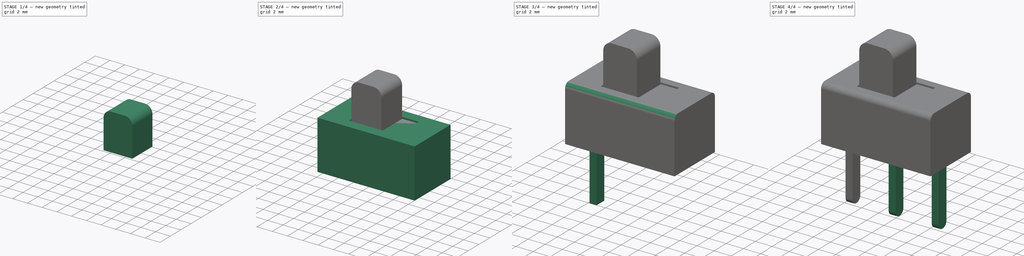
[diagram: build sequence overview — one tinted view per stage of 4, left to right]
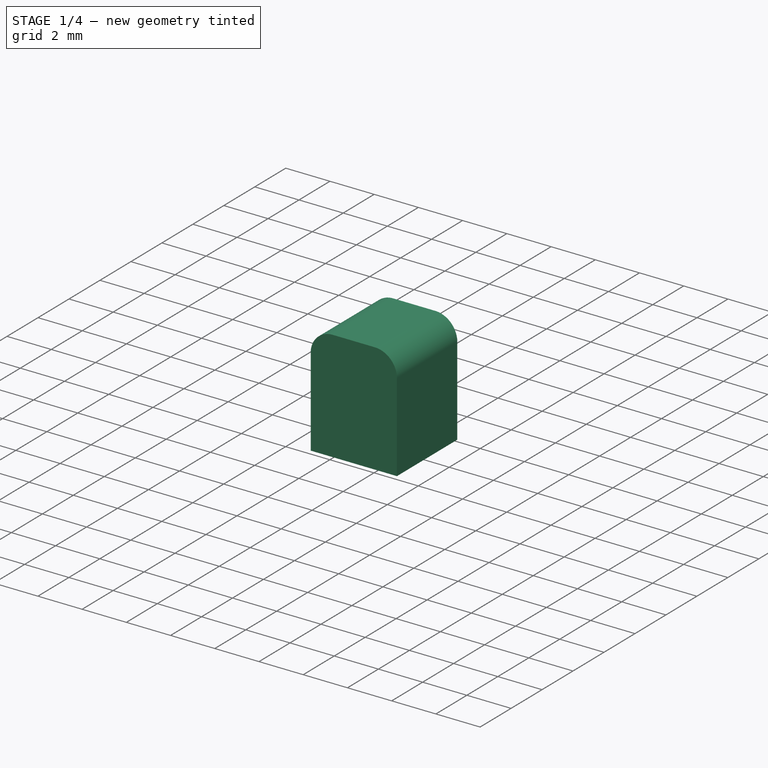
[diagram: stage 1 of 4 — iso view after this stage's code; geometry added in this stage tinted green]
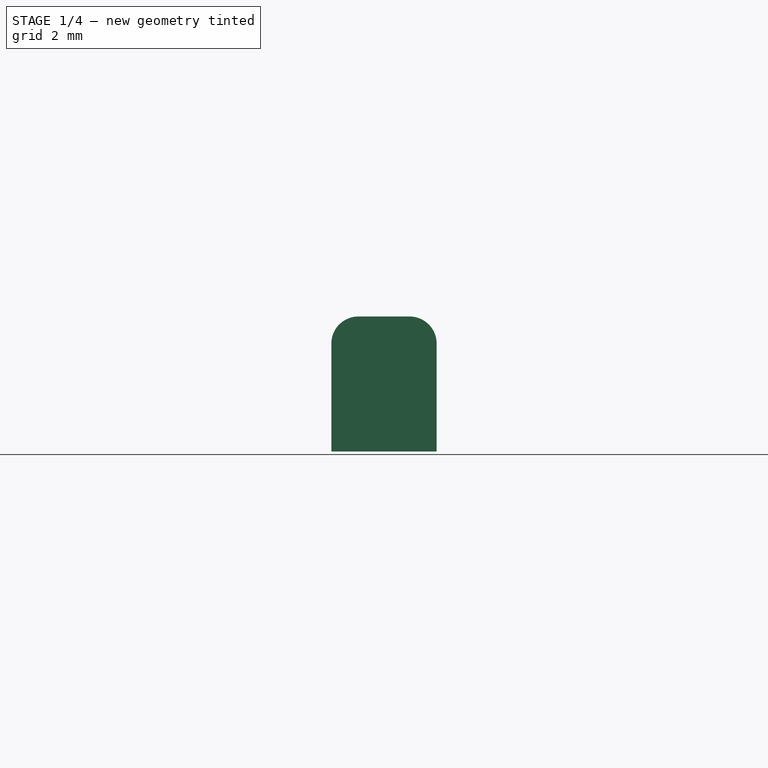
[diagram: stage 1 of 4 — front view after this stage's code; geometry added in this stage tinted green]
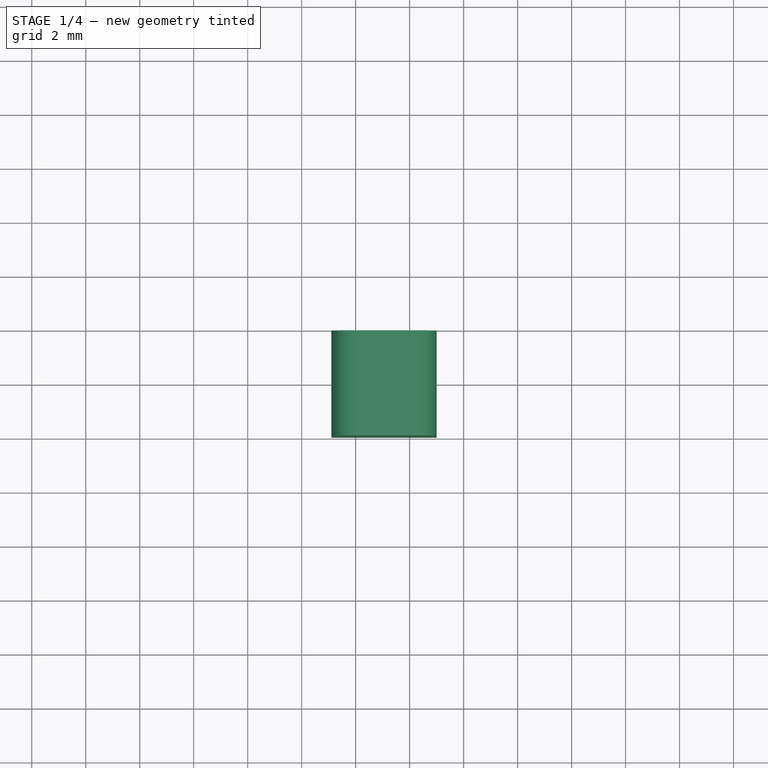
[diagram: stage 1 of 4 — top view after this stage's code; geometry added in this stage tinted green]
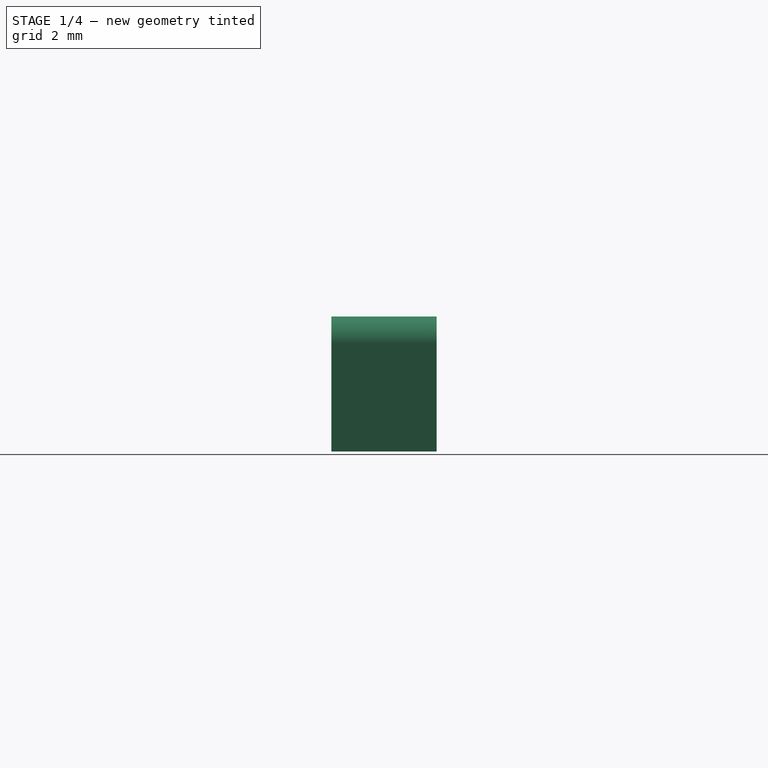
[diagram: stage 1 of 4 — right view after this stage's code; geometry added in this stage tinted green]
FCSTD DOCUMENT  (FreeCAD 2021.1015R24301 +4280 (Git))
Label: SK-12D10
License: Creative Commons Attribution-NoDerivatives
LicenseURL: http://creativecommons.org/licenses/by-nd/4.0/
objects: Sketcher::SketchObject×4, PartDesign::Pad×4, PartDesign::Fillet×4, PartDesign::Body×3, PartDesign::LinearPattern×1, Part::SubShapeBinder×1, App::Part×1
note: 35 computed .brp shape members not serialized (recipe doc carries the construction recipe); baked Part::Feature solids carry a one-line shape summary decoded from their .brp

FEATURE [PartDesign::Body] Body
  AutoGroupSolids = false
  ExportMode = 0
  Group = -> [Sketch,Pad,Sketch002,Pad002,Fillet001,Fillet002]
  Origin = -> Origin001
  SingleSolid = true
  Tip = -> Fillet002
  _ExportChildren = -> [Pad,Pad002,Fillet001,Fillet002]
  _GroupVersion = 1
FEATURE [Part::SubShapeBinder] Import  label="Import(Fillet002)"
  BindCopyOnChange = 0
  BindMode = 0
  ClaimChildren = false
  Context = -> Part [Body002.Import.]
  FillStyle = 0
  Fuse = false
  MakeFace = false
  PartialLoad = false
  Relative = true
  Support = -> [Body[Fillet002.]]
  _Version = 8
FEATURE [Sketcher::SketchObject] Sketch003
  FullyConstrained = true
  MapMode = 5
  Placement = pos=(0,0,6.2) rot=(0,0,1;0rad)
  Support = -> [Import]
  sketch-geometry (4):
    g0: LineSegment StartX=-2.9 StartY=1.95 StartZ=0 EndX=1 EndY=1.95 EndZ=0
    g1: LineSegment StartX=1 StartY=1.95 StartZ=0 EndX=1 EndY=-1.95 EndZ=0
    g2: LineSegment StartX=1 StartY=-1.95 StartZ=0 EndX=-2.9 EndY=-1.95 EndZ=0
    g3: LineSegment StartX=-2.9 StartY=-1.95 StartZ=0 EndX=-2.9 EndY=1.95 EndZ=0
  constraints (11):
    c: Coincident(g0,g1)
    c: Coincident(g1,g2)
    c: Coincident(g2,g3)
    c: Coincident(g3,g0)
    c: Horizontal(g0)
    c: Horizontal(g2)
    c: Vertical(g3)
    c: Symmetric(g1,g0,g-1)
    c: DistanceX(g0,g0) = 3.9
    c: DistanceY(g3,g3) = 3.9
    c: DistanceX(g-1,g0) = 1
FEATURE [PartDesign::Pad] Pad003
  AddSubType = 0
  CheckUpToFaceLimits = true
  ClaimChildren = false
  Direction = (1,1,1)
  Fit = 0
  FitJoin = 0
  InnerFit = 0
  InnerFitJoin = 0
  InnerTaperAngle = 0
  InnerTaperAngleRev = 0
  Length = 5
  Length2 = 100
  Linearize = true
  NewSolid = false
  Profile = -> Sketch003
  Refine = true
  Suppress = false
  Type = 0
  _ProfileBasedVersion = 1
FEATURE [PartDesign::Fillet] Fillet003
  AddSubType = 0
  Base = -> Pad003 [Edge12,Edge7]
  BaseFeature = -> Pad003
  NewSolid = false
  Radius = 1
  Refine = true
  SupportTransform = false
  Suppress = false
FEATURE [PartDesign::Body] Body002  label="Lever"
  AutoGroupSolids = false
  ExportMode = 0
  Group = -> [Import,Sketch003,Pad003,Fillet003]
  Origin = -> Origin003
  SingleSolid = true
  Tip = -> Fillet003
  _ExportChildren = -> [Import,Pad003,Fillet003]
  _GroupVersion = 1
FEATURE [App::Part] Part  label="SK-12D10 1P2T"
  ExportMode = 1
  Group = -> [Body,Body001,Body002]
  Origin = -> Origin
  _ExportChildren = -> [Body,Body001,Body002]
  _GroupVersion = 1
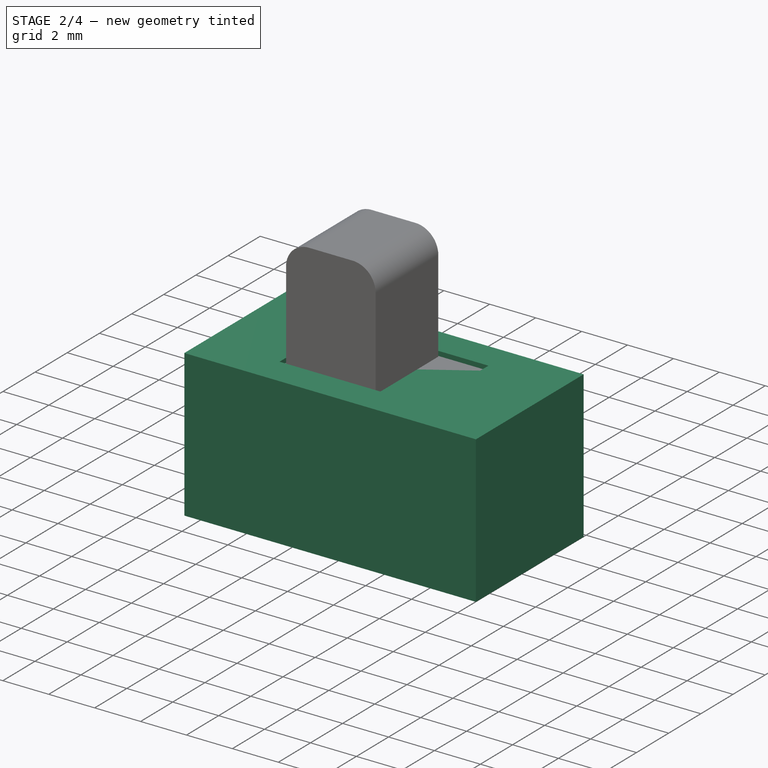
[diagram: stage 2 of 4 — iso view after this stage's code; geometry added in this stage tinted green]
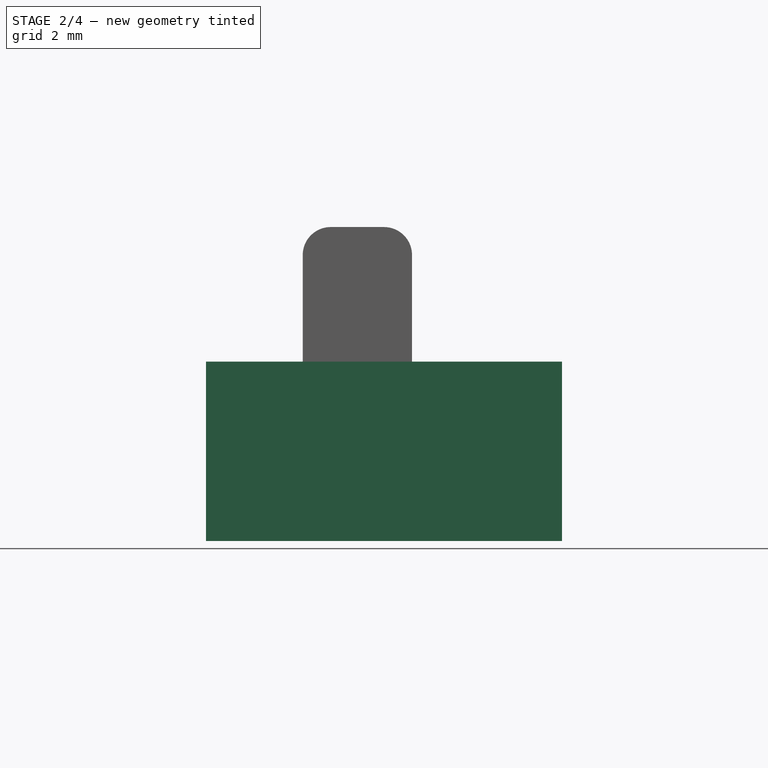
[diagram: stage 2 of 4 — front view after this stage's code; geometry added in this stage tinted green]
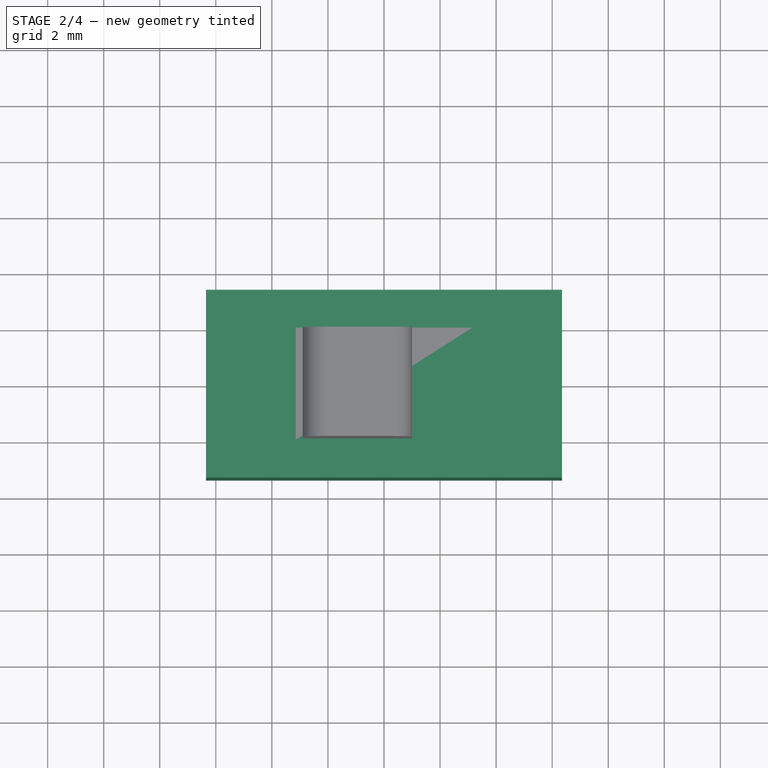
[diagram: stage 2 of 4 — top view after this stage's code; geometry added in this stage tinted green]
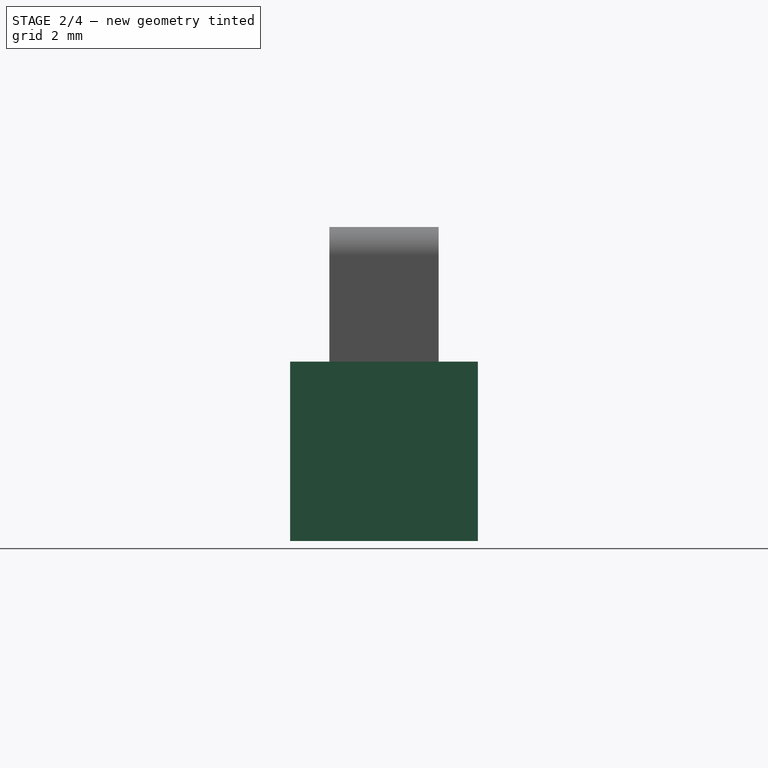
[diagram: stage 2 of 4 — right view after this stage's code; geometry added in this stage tinted green]
FEATURE [Sketcher::SketchObject] Sketch
  FullyConstrained = true
  MapMode = 5
  Support = -> [XY_Plane]
  sketch-geometry (4):
    g0: LineSegment StartX=-6.35 StartY=3.35 StartZ=0 EndX=6.35 EndY=3.35 EndZ=0
    g1: LineSegment StartX=6.35 StartY=3.35 StartZ=0 EndX=6.35 EndY=-3.35 EndZ=0
    g2: LineSegment StartX=6.35 StartY=-3.35 StartZ=0 EndX=-6.35 EndY=-3.35 EndZ=0
    g3: LineSegment StartX=-6.35 StartY=-3.35 StartZ=0 EndX=-6.35 EndY=3.35 EndZ=0
  constraints (11):
    c: Coincident(g0,g1)
    c: Coincident(g1,g2)
    c: Coincident(g2,g3)
    c: Coincident(g3,g0)
    c: Horizontal(g0)
    c: Horizontal(g2)
    c: Vertical(g1)
    c: Vertical(g3)
    c: Symmetric(g1,g0,g-1)
    c: DistanceX(g0,g0) = 12.7
    c: DistanceY(g1,g1) = 6.7
FEATURE [PartDesign::Pad] Pad
  AddSubType = 0
  CheckUpToFaceLimits = true
  ClaimChildren = false
  Direction = (1,1,1)
  Fit = 0
  FitJoin = 0
  InnerFit = 0
  InnerFitJoin = 0
  InnerTaperAngle = 0
  InnerTaperAngleRev = 0
  Length = 6.4
  Length2 = 100
  Linearize = true
  NewSolid = false
  Profile = -> Sketch
  Refine = true
  Suppress = false
  Type = 0
  _ProfileBasedVersion = 1
FEATURE [PartDesign::Body] Body001  label="Pin"
  AutoGroupSolids = false
  ExportMode = 0
  Group = -> [Sketch001,Pad001,LinearPattern,Fillet]
  Origin = -> Origin002
  Tip = -> Fillet
  _ExportChildren = -> [Pad001,LinearPattern,Fillet]
  _GroupVersion = 1
FEATURE [Sketcher::SketchObject] Sketch002
  FullyConstrained = true
  MapMode = 5
  Placement = pos=(0,0,6.4) rot=(0,0,1;0rad)
  Support = -> [Pad]
  sketch-geometry (4):
    g0: LineSegment StartX=-3.15 StartY=2 StartZ=0 EndX=3.15 EndY=2 EndZ=0
    g1: LineSegment StartX=3.15 StartY=2 StartZ=0 EndX=3.15 EndY=-2 EndZ=0
    g2: LineSegment StartX=3.15 StartY=-2 StartZ=0 EndX=-3.15 EndY=-2 EndZ=0
    g3: LineSegment StartX=-3.15 StartY=-2 StartZ=0 EndX=-3.15 EndY=2 EndZ=0
  constraints (11):
    c: Coincident(g0,g1)
    c: Coincident(g1,g2)
    c: Coincident(g2,g3)
    c: Coincident(g3,g0)
    c: Horizontal(g0)
    c: Horizontal(g2)
    c: Vertical(g1)
    c: Vertical(g3)
    c: Symmetric(g1,g0,g-1)
    c: DistanceY(g1,g1) = 4
    c: DistanceX(g0,g0) = 6.3
FEATURE [PartDesign::Pad] Pad002
  AddSubType = 1
  BaseFeature = -> Pad
  CheckUpToFaceLimits = true
  ClaimChildren = false
  Direction = (1,1,1)
  Fit = 0
  FitJoin = 0
  InnerFit = 0
  InnerFitJoin = 0
  InnerTaperAngle = 0
  InnerTaperAngleRev = 0
  Length = 0.2
  Length2 = 100
  Linearize = true
  NewSolid = false
  Profile = -> Sketch002
  Refine = true
  Reversed = true
  Suppress = false
  Type = 0
  _ProfileBasedVersion = 1
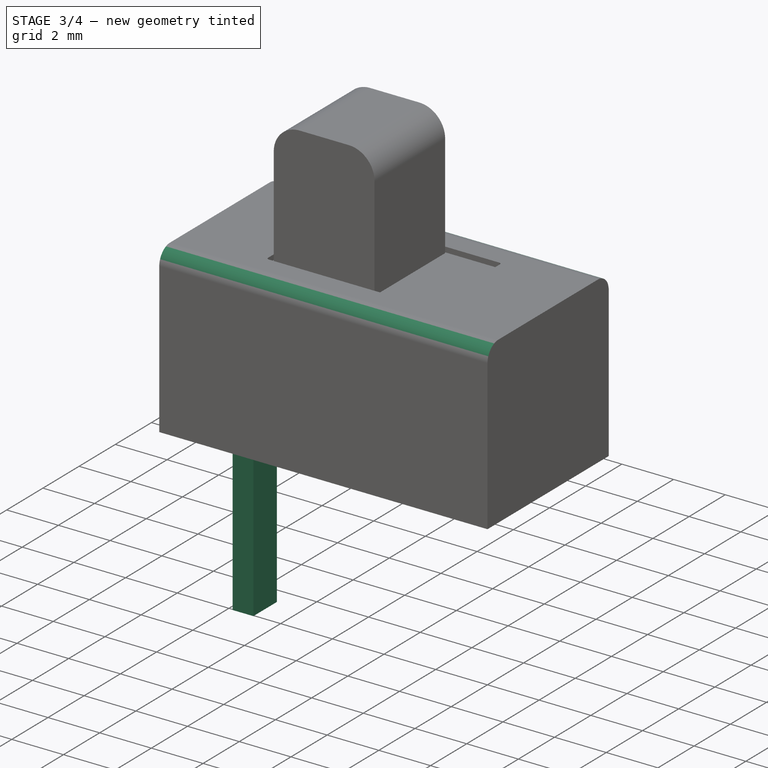
[diagram: stage 3 of 4 — iso view after this stage's code; geometry added in this stage tinted green]
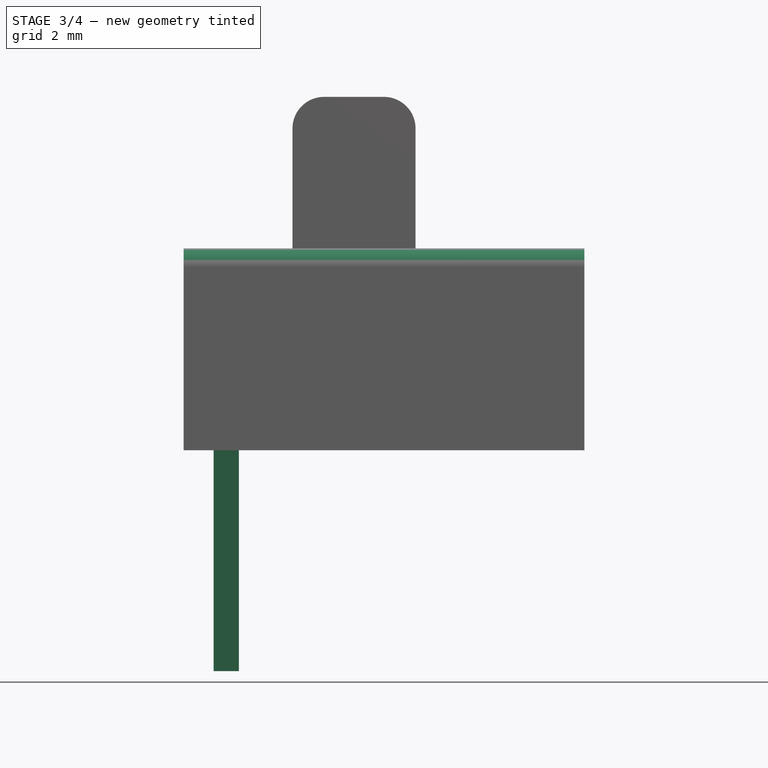
[diagram: stage 3 of 4 — front view after this stage's code; geometry added in this stage tinted green]
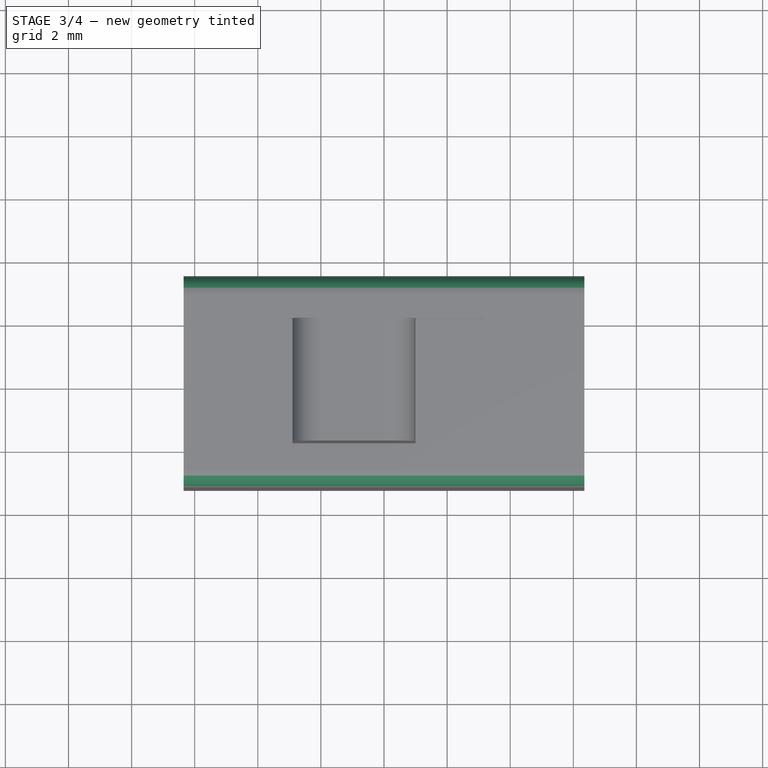
[diagram: stage 3 of 4 — top view after this stage's code; geometry added in this stage tinted green]
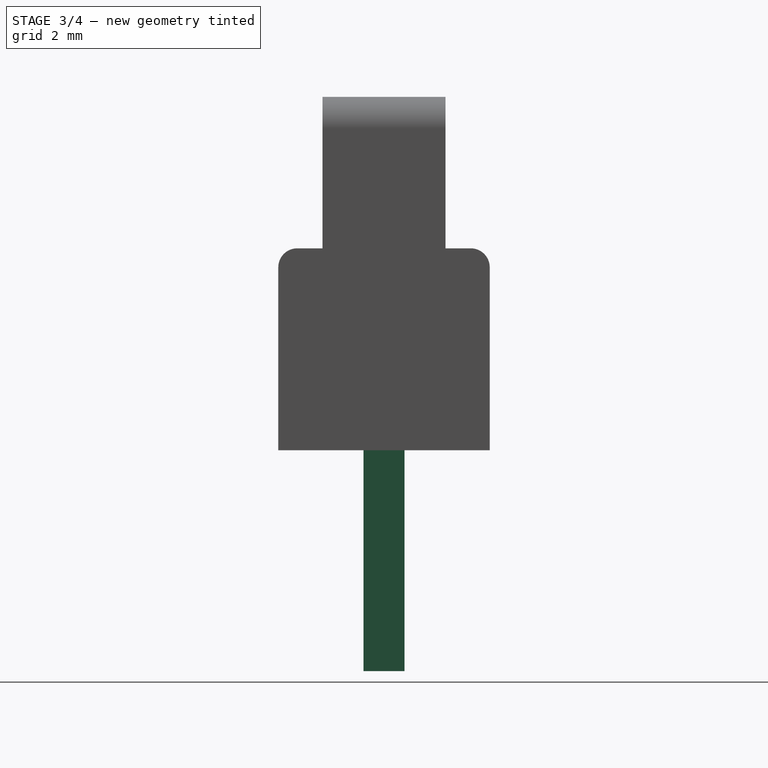
[diagram: stage 3 of 4 — right view after this stage's code; geometry added in this stage tinted green]
FEATURE [Sketcher::SketchObject] Sketch001
  FullyConstrained = true
  MapMode = 5
  Support = -> [XY_Plane001]
  sketch-geometry (5):
    g0: LineSegment StartX=-5.4 StartY=0.65 StartZ=0 EndX=-4.6 EndY=0.65 EndZ=0
    g1: LineSegment StartX=-4.6 StartY=0.65 StartZ=0 EndX=-4.6 EndY=-0.65 EndZ=0
    g2: LineSegment StartX=-4.6 StartY=-0.65 StartZ=0 EndX=-5.4 EndY=-0.65 EndZ=0
    g3: LineSegment StartX=-5.4 StartY=-0.65 StartZ=0 EndX=-5.4 EndY=0.65 EndZ=0
    g4: LineSegment [constr] StartX=-5 StartY=0.65 StartZ=0 EndX=-5 EndY=-0.65 EndZ=0
  constraints (14):
    c: Coincident(g0,g1)
    c: Coincident(g1,g2)
    c: Coincident(g2,g3)
    c: Coincident(g3,g0)
    c: Horizontal(g0)
    c: Horizontal(g2)
    c: Vertical(g3)
    c: Symmetric(g1,g0,g-1)
    c: PointOnObject(g4,g2)
    c: Vertical(g4)
    c: Symmetric(g0,g0,g4)
    c: DistanceX(g4,g-1) = 5
    c: DistanceY(g3,g3) = 1.3
    c: DistanceX(g0,g0) = 0.8
FEATURE [PartDesign::Pad] Pad001
  AddSubType = 0
  CheckUpToFaceLimits = true
  ClaimChildren = false
  Direction = (1,1,1)
  Fit = 0
  FitJoin = 0
  InnerFit = 0
  InnerFitJoin = 0
  InnerTaperAngle = 0
  InnerTaperAngleRev = 0
  Length = 7
  Length2 = 100
  Linearize = true
  NewSolid = false
  Profile = -> Sketch001
  Refine = true
  Reversed = true
  Suppress = false
  Type = 0
  _ProfileBasedVersion = 1
FEATURE [PartDesign::Fillet] Fillet001
  AddSubType = 0
  Base = -> Pad002 [Edge4,Edge12]
  BaseFeature = -> Pad002
  NewSolid = false
  Radius = 0.6
  Refine = true
  SupportTransform = false
  Suppress = false
FEATURE [PartDesign::Fillet] Fillet002
  AddSubType = 0
  Base = -> Fillet001 [Edge24,Edge23,Edge28,Edge26]
  BaseFeature = -> Fillet001
  NewSolid = false
  Radius = 0.1
  Refine = true
  SupportTransform = false
  Suppress = false
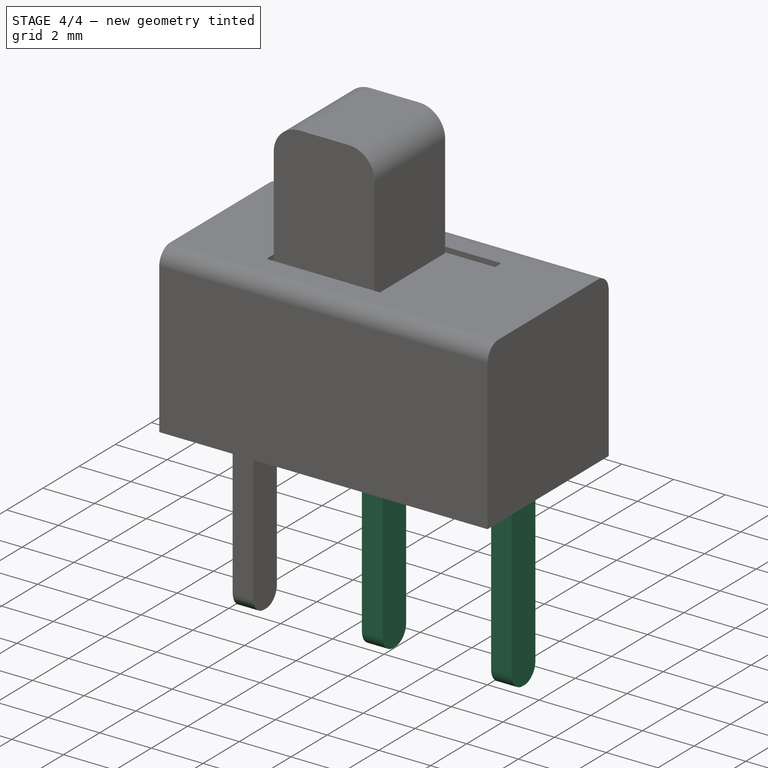
[diagram: stage 4 of 4 — iso view after this stage's code; geometry added in this stage tinted green]
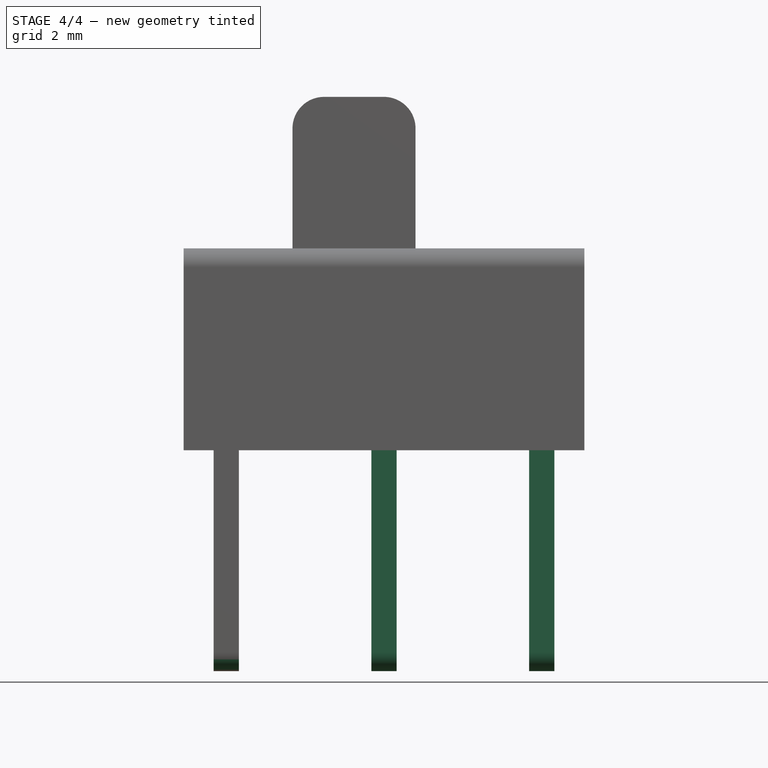
[diagram: stage 4 of 4 — front view after this stage's code; geometry added in this stage tinted green]
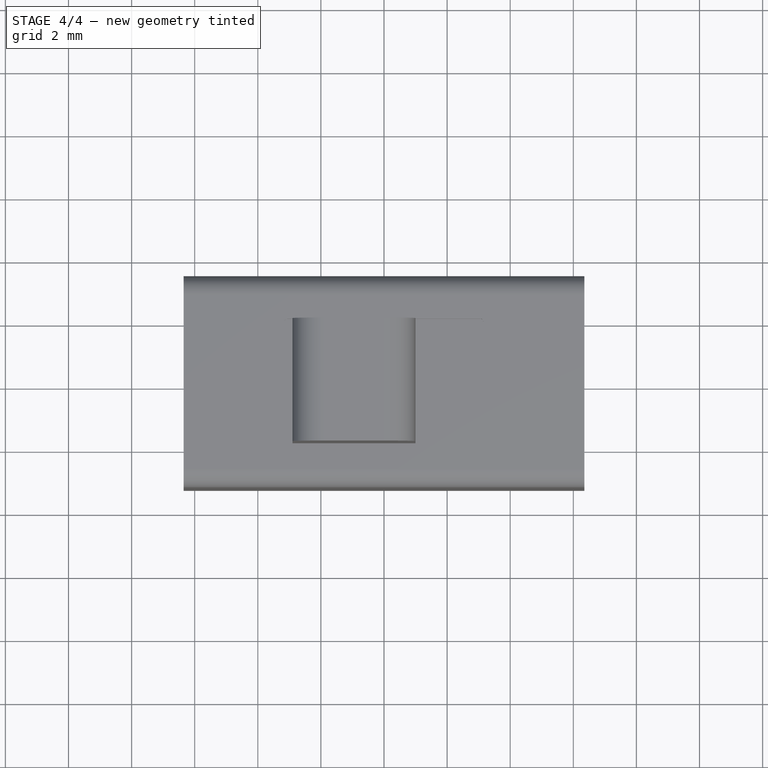
[diagram: stage 4 of 4 — top view after this stage's code; geometry added in this stage tinted green]
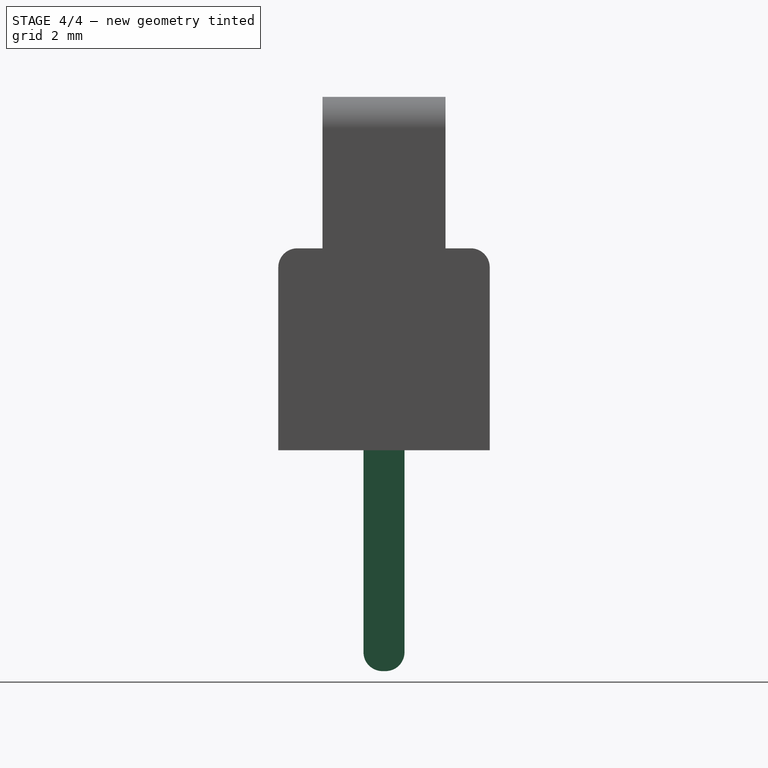
[diagram: stage 4 of 4 — right view after this stage's code; geometry added in this stage tinted green]
FEATURE [PartDesign::LinearPattern] LinearPattern
  AddSubType = 0
  BaseFeature = -> Pad001
  CopyShape = false
  Direction = -> Sketch001 [H_Axis]
  Length = 10
  NewSolid = false
  Occurrences = 3
  OriginalSubs = -> [Pad001]
  Originals = -> [Pad001]
  ParallelTransform = true
  Refine = true
  SubTransform = true
  Suppress = false
  _Version = 3
FEATURE [PartDesign::Fillet] Fillet
  AddSubType = 0
  Base = -> LinearPattern [Edge10,Edge4,Edge22,Edge16,Edge34,Edge28]
  BaseFeature = -> LinearPattern
  NewSolid = false
  Radius = 0.6
  Refine = true
  SupportTransform = false
  Suppress = false
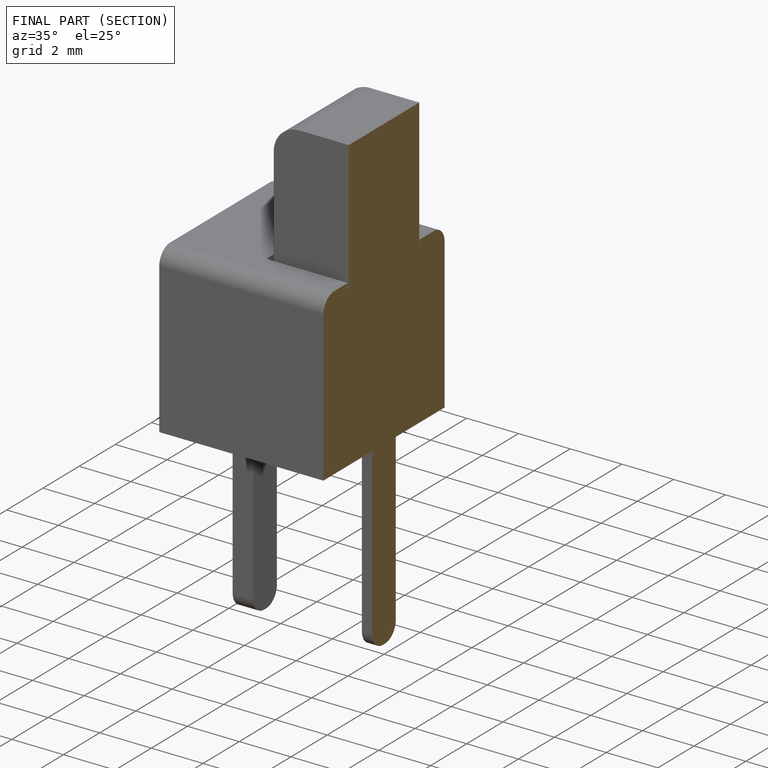
[diagram: finished part — half-section view (interior)]
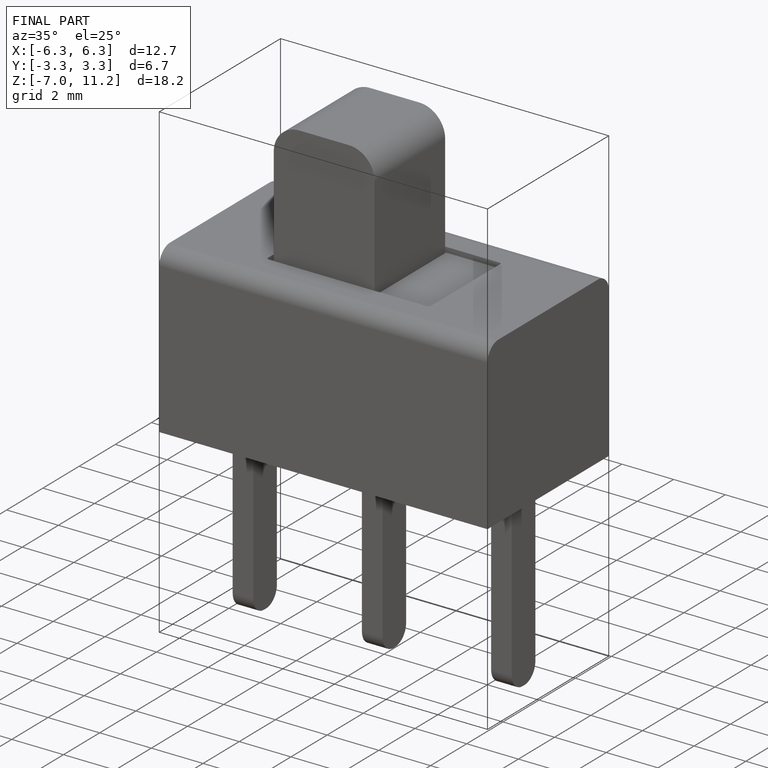
[diagram: finished part — iso view with bounding-box wireframe]
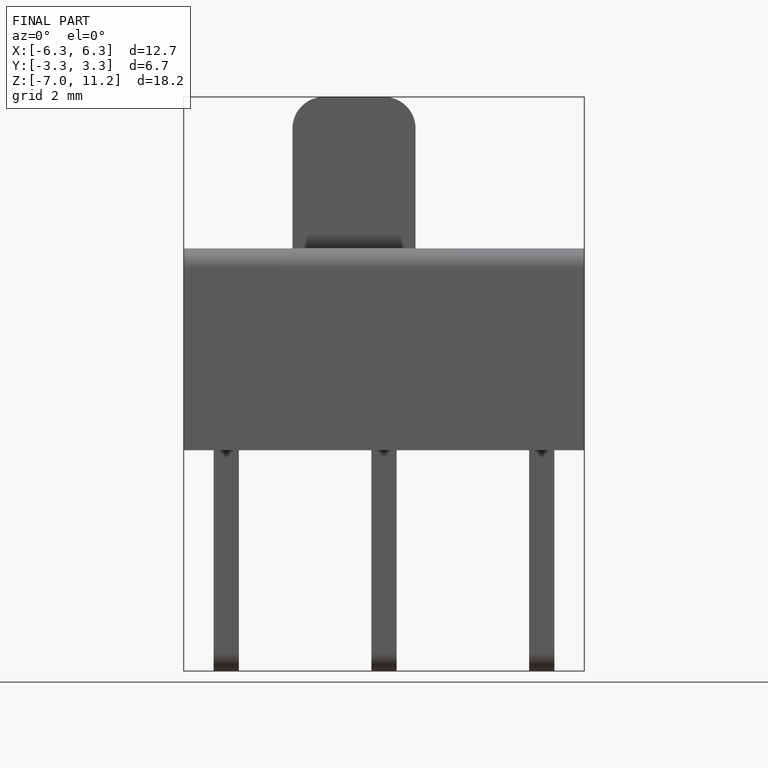
[diagram: finished part — front view with bounding-box wireframe]
